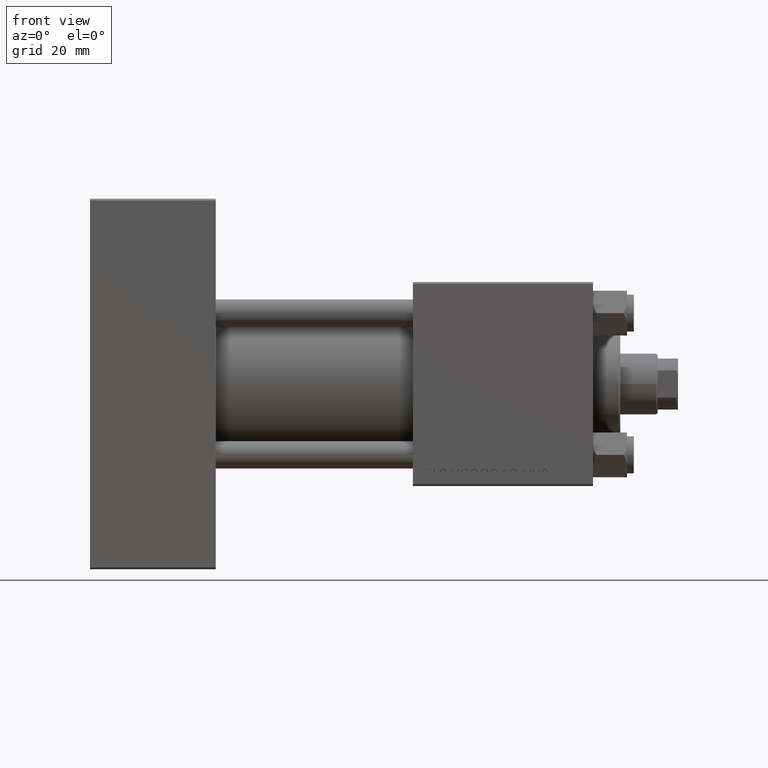
[diagram: clean part render]
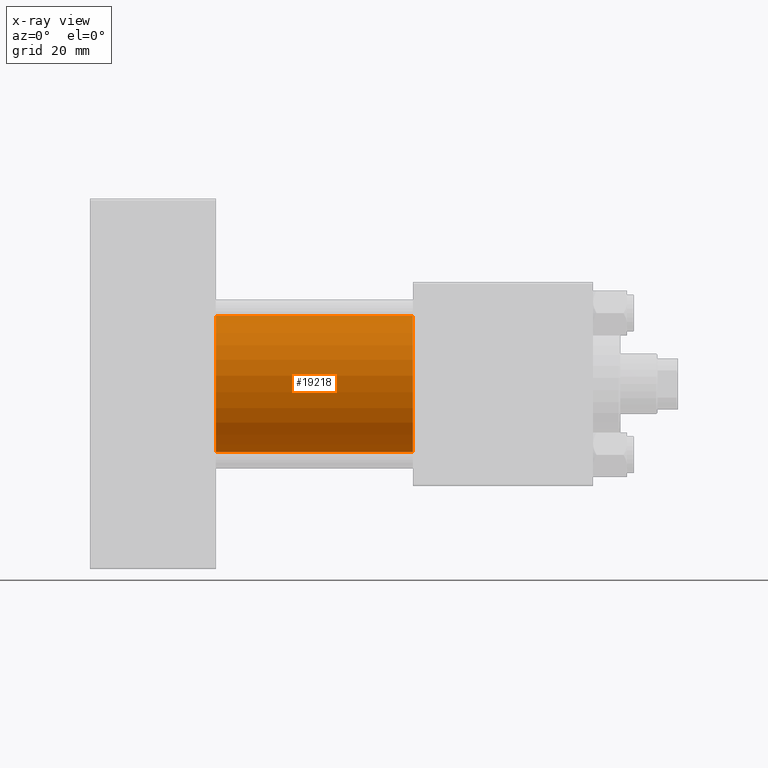
[diagram: x-ray — body ghosted, one internal face saturated and labeled with its STEP entity id]
A machine part, front view, then the same camera in x-ray: the body is ghosted and one INTERNAL B-rep face — a face not visible from any outside direction — is saturated and labeled: STEP entity #19218.
In plain terms, the highlighted cylindrical surface (partial cylindrical patch) has radius 20 mm, axis along (-1, -0, -0).
Its self-contained STEP definition (entity closure, byte-faithful):
#1171 = VECTOR ( 'NONE', #47085, 1000.000000000000000 ) ;
#1942 = DIRECTION ( 'NONE',  ( 0.000000000000000000, 0.000000000000000000, -1.000000000000000000 ) ) ;
#2021 = VERTEX_POINT ( 'NONE', #49358 ) ;
#2103 = EDGE_CURVE ( 'NONE', #3940, #44270, #3250, .T. ) ;
#3104 = CARTESIAN_POINT ( 'NONE',  ( 95.00000000000000000, -2.602085213965210642E-15, 20.00000000000000000 ) ) ;
#3250 = LINE ( 'NONE', #18259, #4449 ) ;
#3413 = ORIENTED_EDGE ( 'NONE', *, *, #22038, .F. ) ;
#3940 = VERTEX_POINT ( 'NONE', #33592 ) ;
#4449 = VECTOR ( 'NONE', #38526, 1000.000000000000000 ) ;
#4946 = AXIS2_PLACEMENT_3D ( 'NONE', #18676, #14204, #45801 ) ;
#5016 = FACE_OUTER_BOUND ( 'NONE', #17922, .T. ) ;
#5384 = DIRECTION ( 'NONE',  ( 1.000000000000000000, 0.000000000000000000, 0.000000000000000000 ) ) ;
#7319 = LINE ( 'NONE', #3104, #1171 ) ;
#8406 = AXIS2_PLACEMENT_3D ( 'NONE', #24805, #20836, #49531 ) ;
#10091 = CIRCLE ( 'NONE', #8406, 20.00000000000000000 ) ;
#14204 = DIRECTION ( 'NONE',  ( -1.000000000000000000, -0.000000000000000000, -0.000000000000000000 ) ) ;
#14367 = ORIENTED_EDGE ( 'NONE', *, *, #2103, .T. ) ;
#14725 = CYLINDRICAL_SURFACE ( 'NONE', #4946, 20.00000000000000000 ) ;
#17045 = VERTEX_POINT ( 'NONE', #46455 ) ;
#17171 = ORIENTED_EDGE ( 'NONE', *, *, #38110, .F. ) ;
#17922 = EDGE_LOOP ( 'NONE', ( #34744, #14367, #3413, #17171 ) ) ;
#18259 = CARTESIAN_POINT ( 'NONE',  ( 95.00000000000000000, -1.527916156705046464E-16, -20.00000000000000000 ) ) ;
#18676 = CARTESIAN_POINT ( 'NONE',  ( 95.00000000000000000, -2.602085213965210642E-15, 0.000000000000000000 ) ) ;
#19218 = ADVANCED_FACE ( 'NONE', ( #5016 ), #14725, .F. ) ;
#20836 = DIRECTION ( 'NONE',  ( 1.000000000000000000, 0.000000000000000000, 0.000000000000000000 ) ) ;
#22038 = EDGE_CURVE ( 'NONE', #17045, #44270, #10091, .T. ) ;
#24805 = CARTESIAN_POINT ( 'NONE',  ( 37.00000000000000000, -2.602085213965210642E-15, 0.000000000000000000 ) ) ;
#28983 = CIRCLE ( 'NONE', #37372, 20.00000000000000000 ) ;
#29621 = CARTESIAN_POINT ( 'NONE',  ( 37.00000000000000000, -1.527916156705046464E-16, -20.00000000000000000 ) ) ;
#31148 = EDGE_CURVE ( 'NONE', #2021, #3940, #28983, .T. ) ;
#33592 = CARTESIAN_POINT ( 'NONE',  ( 95.00000000000000000, -1.527916156705046464E-16, -20.00000000000000000 ) ) ;
#34744 = ORIENTED_EDGE ( 'NONE', *, *, #31148, .T. ) ;
#37372 = AXIS2_PLACEMENT_3D ( 'NONE', #45658, #5384, #1942 ) ;
#38110 = EDGE_CURVE ( 'NONE', #2021, #17045, #7319, .T. ) ;
#38526 = DIRECTION ( 'NONE',  ( -1.000000000000000000, -0.000000000000000000, -0.000000000000000000 ) ) ;
#44270 = VERTEX_POINT ( 'NONE', #29621 ) ;
#45658 = CARTESIAN_POINT ( 'NONE',  ( 95.00000000000000000, -2.602085213965210642E-15, 0.000000000000000000 ) ) ;
#45801 = DIRECTION ( 'NONE',  ( 0.000000000000000000, 0.000000000000000000, 1.000000000000000000 ) ) ;
#46455 = CARTESIAN_POINT ( 'NONE',  ( 37.00000000000000000, -2.602085213965210642E-15, 20.00000000000000000 ) ) ;
#47085 = DIRECTION ( 'NONE',  ( -1.000000000000000000, -0.000000000000000000, -0.000000000000000000 ) ) ;
#49358 = CARTESIAN_POINT ( 'NONE',  ( 95.00000000000000000, -2.602085213965210642E-15, 20.00000000000000000 ) ) ;
#49531 = DIRECTION ( 'NONE',  ( 0.000000000000000000, 0.000000000000000000, -1.000000000000000000 ) ) ;